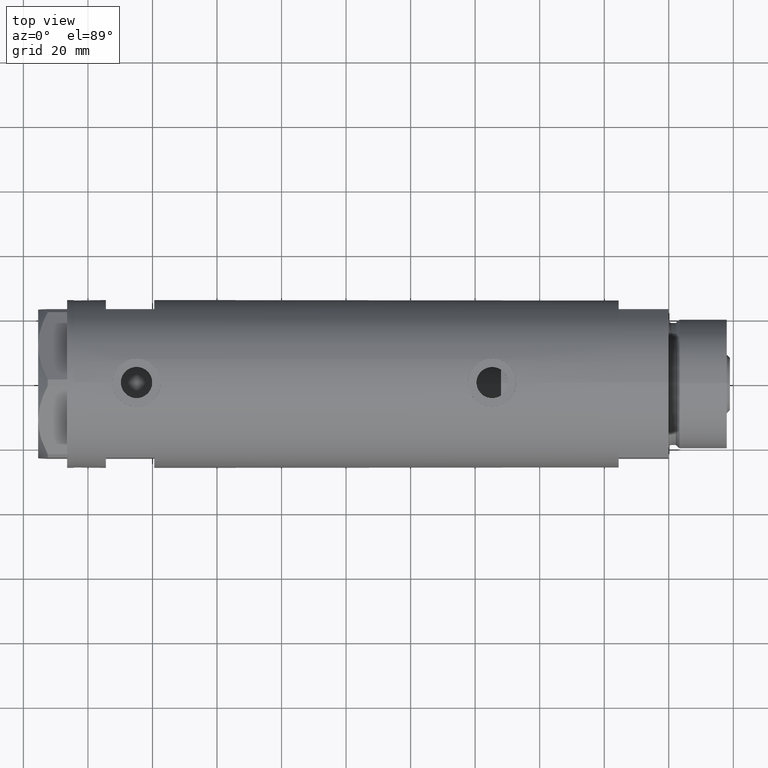
[diagram: clean part render]
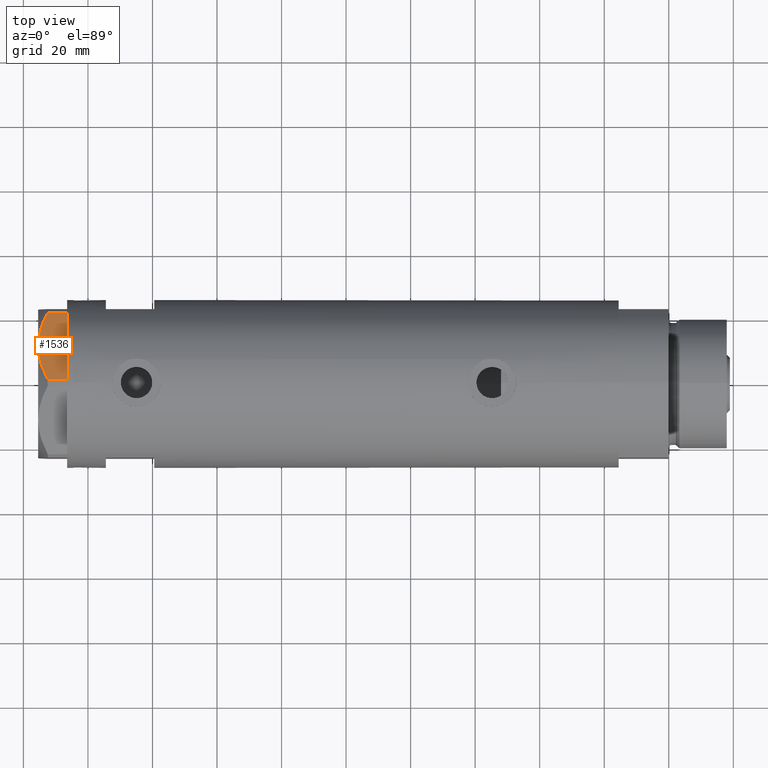
[diagram: same view with one face highlighted and labeled with its STEP entity id]
A machine part, top view. The second image highlights one B-rep face of the part: STEP entity #1536.
In plain terms, the highlighted planar face has unit normal (-0, -0.5, -0.866).
Its self-contained STEP definition (entity closure, byte-faithful):
#38 = CARTESIAN_POINT ( 'NONE',  ( 22.00000000000017053, -13.85640646055075464, 0.000000000000000000 ) ) ;
#53 = CARTESIAN_POINT ( 'NONE',  ( 7.836767740116735048, -22.03355241838978884, 8.637313967156950767 ) ) ;
#73 = VERTEX_POINT ( 'NONE', #997 ) ;
#124 = CARTESIAN_POINT ( 'NONE',  ( 17.77001848220201907, -16.29858742851870090, 7.892128867758446908 ) ) ;
#155 = B_SPLINE_CURVE_WITH_KNOTS ( 'NONE', 3,
 ( #2433, #3715, #1689, #1615, #124, #852, #3222, #3296, #884, #2410 ),
 .UNSPECIFIED., .F., .F.,
 ( 4, 2, 2, 2, 4 ),
 ( 0.01376519981810312224, 0.01998941321701588197, 0.02154546656674407104, 0.02310151991647226011, 0.02621362661592864518 ),
 .UNSPECIFIED. ) ;
#243 = VERTEX_POINT ( 'NONE', #38 ) ;
#283 = EDGE_CURVE ( 'NONE', #390, #243, #3815, .T. ) ;
#316 = PLANE ( 'NONE',  #3979 ) ;
#390 = VERTEX_POINT ( 'NONE', #3508 ) ;
#469 = CARTESIAN_POINT ( 'NONE',  ( 0.9699484522386233598, -25.99811238272281244, 5.983800287807552465 ) ) ;
#623 = ORIENTED_EDGE ( 'NONE', *, *, #283, .T. ) ;
#852 = CARTESIAN_POINT ( 'NONE',  ( 18.64279229058404752, -15.79469123530767227, 7.570552255229726413 ) ) ;
#868 = ORIENTED_EDGE ( 'NONE', *, *, #2103, .T. ) ;
#884 = CARTESIAN_POINT ( 'NONE',  ( 21.20080365460326988, -14.31782268570101735, 6.431317509509397290 ) ) ;
#898 = CARTESIAN_POINT ( 'NONE',  ( 0.9699484522386233598, -25.99811238272281244, 5.983800287807552465 ) ) ;
#913 = VERTEX_POINT ( 'NONE', #3411 ) ;
#997 = CARTESIAN_POINT ( 'NONE',  ( 22.03005154776152352, -13.83905619136116449, 5.983800287807632401 ) ) ;
#1257 = VERTEX_POINT ( 'NONE', #1377 ) ;
#1308 = EDGE_LOOP ( 'NONE', ( #4675, #4758, #868, #623, #3479, #3390, #4523 ) ) ;
#1377 = CARTESIAN_POINT ( 'NONE',  ( 0.9699484522387654684, -25.99811238272272718, 0.000000000000000000 ) ) ;
#1536 = ADVANCED_FACE ( 'NONE', ( #3917 ), #316, .F. ) ;
#1569 = DIRECTION ( 'NONE',  ( -0.8660254037844344888, -0.5000000000000069944, 0.000000000000000000 ) ) ;
#1615 = CARTESIAN_POINT ( 'NONE',  ( 17.32831362639727146, -16.55360584591992890, 8.040681765829337024 ) ) ;
#1689 = CARTESIAN_POINT ( 'NONE',  ( 15.11535457301044261, -17.83125835109846591, 8.707651728477005193 ) ) ;
#1733 = VERTEX_POINT ( 'NONE', #898 ) ;
#1846 = CARTESIAN_POINT ( 'NONE',  ( 11.50000000000018296, -19.91858428704203732, 9.000000000000000000 ) ) ;
#1864 = LINE ( 'NONE', #5079, #2390 ) ;
#1915 = B_SPLINE_CURVE_WITH_KNOTS ( 'NONE', 3,
 ( #469, #4830, #4119, #4096, #53, #4022, #3251, #4436, #2507, #3225 ),
 .UNSPECIFIED., .F., .F.,
 ( 4, 2, 2, 2, 4 ),
 ( 0.001228959670438524313, 0.007497079744270824901, 0.01063113978118697747, 0.01219816979964504985, 0.01376519981810312224 ),
 .UNSPECIFIED. ) ;
#1934 = CARTESIAN_POINT ( 'NONE',  ( 1.854543075583504180E-13, -26.55811238272274366, 9.000000000000000000 ) ) ;
#2052 = CARTESIAN_POINT ( 'NONE',  ( 1.854543075583504180E-13, -26.55811238272274366, 0.000000000000000000 ) ) ;
#2062 = CARTESIAN_POINT ( 'NONE',  ( 1.854543075583504180E-13, -26.55811238272274366, 0.000000000000000000 ) ) ;
#2103 = EDGE_CURVE ( 'NONE', #1257, #390, #4495, .T. ) ;
#2390 = VECTOR ( 'NONE', #3087, 1000.000000000000000 ) ;
#2410 = CARTESIAN_POINT ( 'NONE',  ( 22.03005154776152352, -13.83905619136116449, 5.983800287807632401 ) ) ;
#2433 = CARTESIAN_POINT ( 'NONE',  ( 11.50000000000018296, -19.91858428704203732, 9.000000000000000000 ) ) ;
#2460 = LINE ( 'NONE', #4512, #4564 ) ;
#2493 = CARTESIAN_POINT ( 'NONE',  ( 22.03005154776152352, -13.83905619136116449, 9.000000000000000000 ) ) ;
#2507 = CARTESIAN_POINT ( 'NONE',  ( 11.04134848610953235, -20.18338686205092714, 9.000000000000095923 ) ) ;
#2858 = LINE ( 'NONE', #2493, #3216 ) ;
#2886 = DIRECTION ( 'NONE',  ( 0.000000000000000000, 0.000000000000000000, 1.000000000000000000 ) ) ;
#3036 = EDGE_CURVE ( 'NONE', #3903, #73, #155, .T. ) ;
#3056 = VECTOR ( 'NONE', #4102, 999.9999999999998863 ) ;
#3087 = DIRECTION ( 'NONE',  ( 0.000000000000000000, 0.000000000000000000, -1.000000000000000000 ) ) ;
#3170 = DIRECTION ( 'NONE',  ( -0.5000000000000071054, 0.8660254037844345998, 0.000000000000000000 ) ) ;
#3216 = VECTOR ( 'NONE', #2886, 1000.000000000000000 ) ;
#3222 = CARTESIAN_POINT ( 'NONE',  ( 19.07486218897004093, -15.54523556316577704, 7.397272853991418096 ) ) ;
#3225 = CARTESIAN_POINT ( 'NONE',  ( 11.50000000000018296, -19.91858428704203732, 9.000000000000000000 ) ) ;
#3251 = CARTESIAN_POINT ( 'NONE',  ( 9.656518383329995459, -20.98291889467261129, 8.907842277728439839 ) ) ;
#3296 = CARTESIAN_POINT ( 'NONE',  ( 20.35958612119336308, -14.80349985506228094, 6.844201024438393510 ) ) ;
#3390 = ORIENTED_EDGE ( 'NONE', *, *, #4033, .T. ) ;
#3411 = CARTESIAN_POINT ( 'NONE',  ( 22.03005154776152708, -13.83905619136116449, 0.000000000000000000 ) ) ;
#3479 = ORIENTED_EDGE ( 'NONE', *, *, #4574, .T. ) ;
#3508 = CARTESIAN_POINT ( 'NONE',  ( 1.000000000000106803, -25.98076211353316367, 0.000000000000000000 ) ) ;
#3715 = CARTESIAN_POINT ( 'NONE',  ( 13.32175508098997518, -18.86679350063488059, 9.000000000000094147 ) ) ;
#3815 = LINE ( 'NONE', #2062, #3972 ) ;
#3903 = VERTEX_POINT ( 'NONE', #1846 ) ;
#3917 = FACE_OUTER_BOUND ( 'NONE', #1308, .T. ) ;
#3972 = VECTOR ( 'NONE', #4995, 999.9999999999998863 ) ;
#3979 = AXIS2_PLACEMENT_3D ( 'NONE', #1934, #3170, #1569 ) ;
#4022 = CARTESIAN_POINT ( 'NONE',  ( 9.197898616903062319, -21.24770314027487572, 8.852712638955805957 ) ) ;
#4033 = EDGE_CURVE ( 'NONE', #913, #73, #2858, .T. ) ;
#4074 = DIRECTION ( 'NONE',  ( 0.8660254037844345998, 0.5000000000000069944, 0.000000000000000000 ) ) ;
#4096 = CARTESIAN_POINT ( 'NONE',  ( 6.946777556903783513, -22.54738849024392877, 8.426899937603783641 ) ) ;
#4102 = DIRECTION ( 'NONE',  ( 0.8660254037844345998, 0.5000000000000069944, 0.000000000000000000 ) ) ;
#4119 = CARTESIAN_POINT ( 'NONE',  ( 4.320186229910052411, -24.06385169993491857, 7.629374868826107381 ) ) ;
#4436 = CARTESIAN_POINT ( 'NONE',  ( 10.58093321976977386, -20.44920774001120733, 8.981686407609503320 ) ) ;
#4495 = LINE ( 'NONE', #2052, #3056 ) ;
#4512 = CARTESIAN_POINT ( 'NONE',  ( 1.854543075583504180E-13, -26.55811238272274366, 0.000000000000000000 ) ) ;
#4523 = ORIENTED_EDGE ( 'NONE', *, *, #3036, .F. ) ;
#4564 = VECTOR ( 'NONE', #4074, 999.9999999999998863 ) ;
#4574 = EDGE_CURVE ( 'NONE', #243, #913, #2460, .T. ) ;
#4577 = EDGE_CURVE ( 'NONE', #1733, #3903, #1915, .T. ) ;
#4675 = ORIENTED_EDGE ( 'NONE', *, *, #4577, .F. ) ;
#4758 = ORIENTED_EDGE ( 'NONE', *, *, #4808, .T. ) ;
#4808 = EDGE_CURVE ( 'NONE', #1733, #1257, #1864, .T. ) ;
#4830 = CARTESIAN_POINT ( 'NONE',  ( 2.626494320835812690, -25.04170517956324460, 6.877782426143459915 ) ) ;
#4995 = DIRECTION ( 'NONE',  ( 0.8660254037844345998, 0.5000000000000069944, 0.000000000000000000 ) ) ;
#5079 = CARTESIAN_POINT ( 'NONE',  ( 0.9699484522387652463, -25.99811238272272718, 9.000000000000000000 ) ) ;